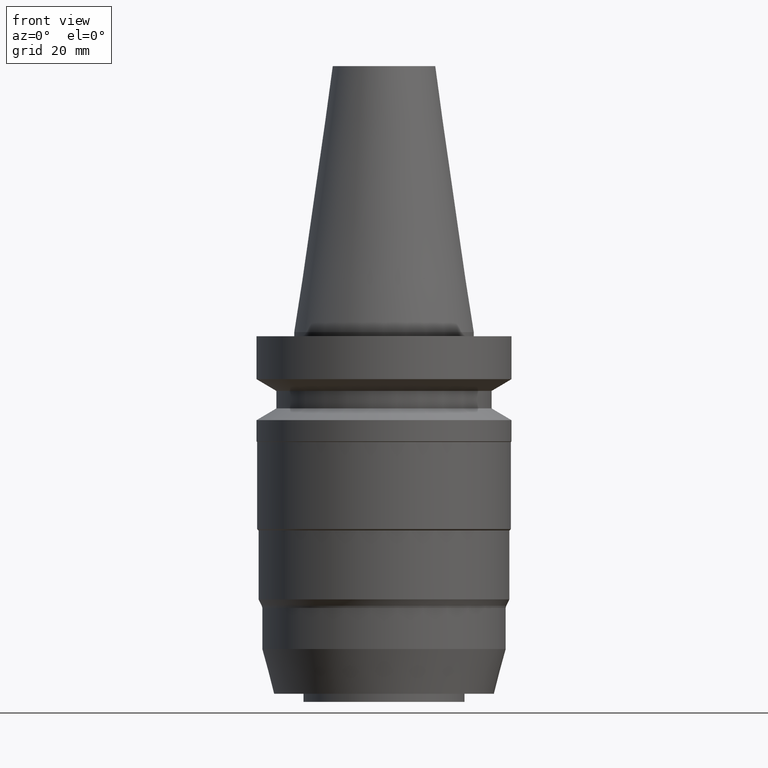
[diagram: clean part render]
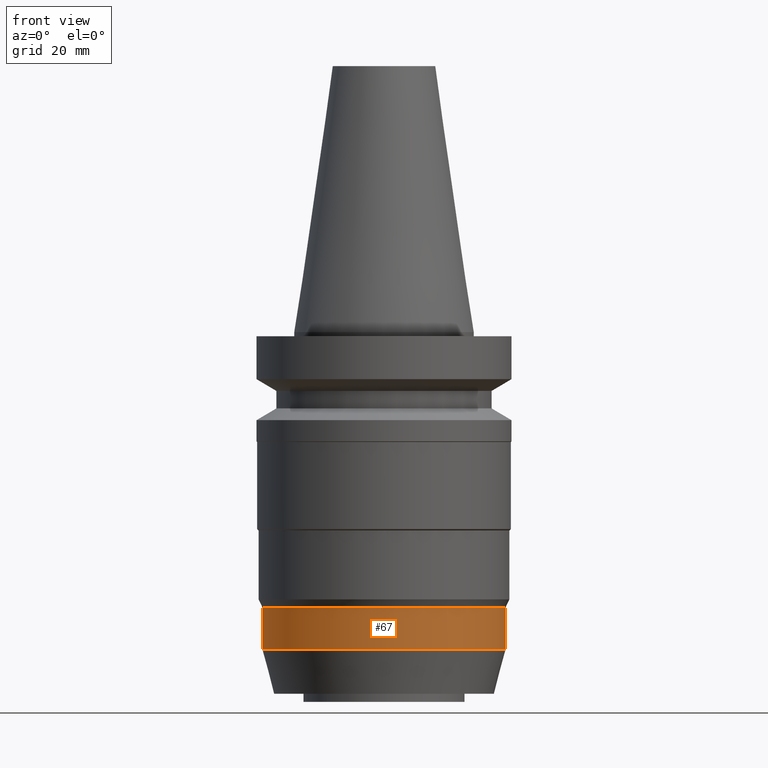
[diagram: same view with one face highlighted and labeled with its STEP entity id]
A machine part, front view. The second image highlights one B-rep face of the part: STEP entity #67.
In plain terms, the highlighted cylindrical surface (bore or boss wall) has radius 29.95 mm, axis along (0, -0, -1).
Its self-contained STEP definition (entity closure, byte-faithful):
#67=ADVANCED_FACE('Unnamed[1]',(#185,#186),#187,.T.);
#77=EDGE_CURVE('Unnamed[1]',#201,#201,#202,.T.);
#129=EDGE_CURVE('Unnamed[1]',#283,#283,#284,.T.);
#185=FACE_BOUND('',#351,.T.);
#186=FACE_BOUND('',#352,.T.);
#187=CYLINDRICAL_SURFACE('',#353,29.9500000000001);
#201=VERTEX_POINT('',#372);
#202=CIRCLE('',#373,29.9499999999999);
#283=VERTEX_POINT('',#474);
#284=CIRCLE('',#475,29.9500000000003);
#351=EDGE_LOOP('',(#546));
#352=EDGE_LOOP('',(#547));
#353=AXIS2_PLACEMENT_3D('',#548,#549,#550);
#372=CARTESIAN_POINT('',(4.14959010316459E-015,29.9499999999999,-67.7679491924316));
#373=AXIS2_PLACEMENT_3D('',#563,#564,#565);
#474=CARTESIAN_POINT('',(4.7694145210376E-015,29.9500000000003,-77.8904501176706));
#475=AXIS2_PLACEMENT_3D('',#657,#658,#659);
#546=ORIENTED_EDGE('',*,*,#129,.F.);
#547=ORIENTED_EDGE('',*,*,#77,.T.);
#548=CARTESIAN_POINT('',(4.45950231210109E-015,1.99775614345102E-014,-72.8291996550511));
#549=DIRECTION('',(6.12323399573676E-017,-4.10767166376342E-016,-1.0));
#550=DIRECTION('',(2.03250820441117E-032,1.0,-4.10767166376342E-016));
#563=CARTESIAN_POINT('',(4.14959010316459E-015,2.20565569453614E-014,-67.7679491924316));
#564=DIRECTION('',(6.12323399573677E-017,-4.10767166376342E-016,-1.0));
#565=DIRECTION('',(2.03250820441117E-032,1.0,-4.10767166376342E-016));
#657=CARTESIAN_POINT('',(4.7694145210376E-015,1.7898565923659E-014,-77.8904501176706));
#658=DIRECTION('',(6.12323399573677E-017,-4.10767166376342E-016,-1.0));
#659=DIRECTION('',(2.03250820441117E-032,1.0,-4.10767166376342E-016));